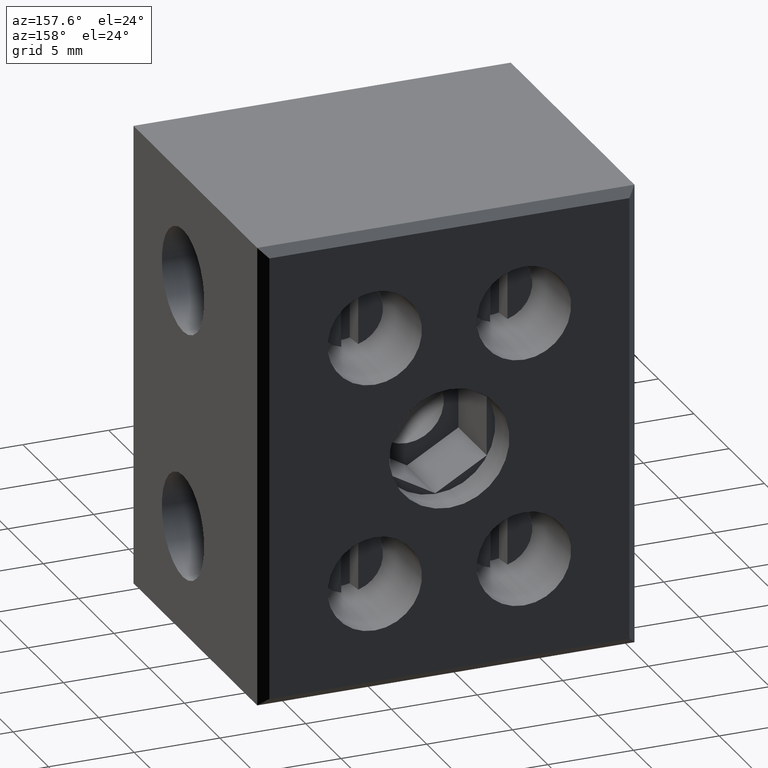
[diagram: clean part render]
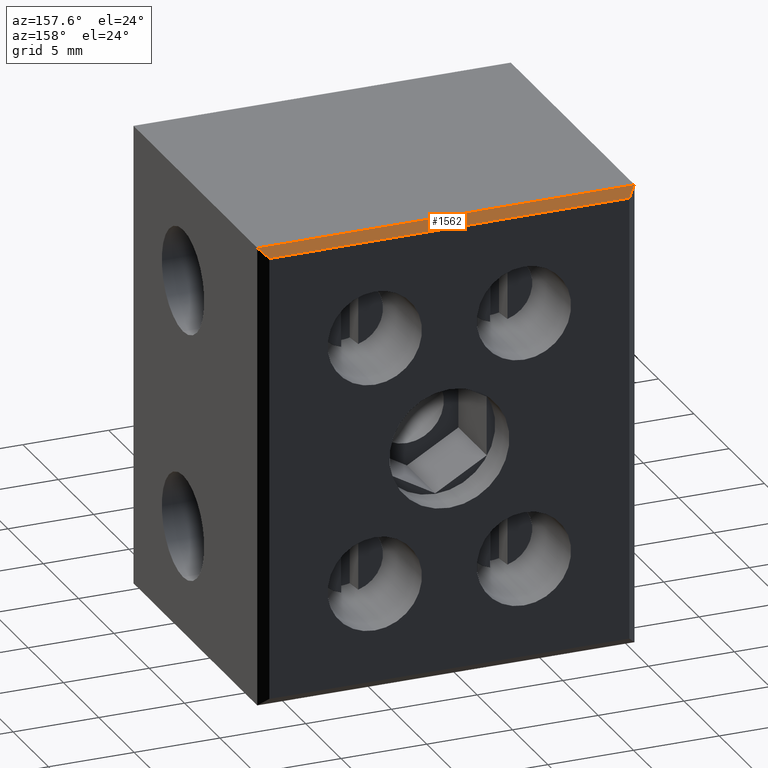
[diagram: same view with one face highlighted and labeled with its STEP entity id]
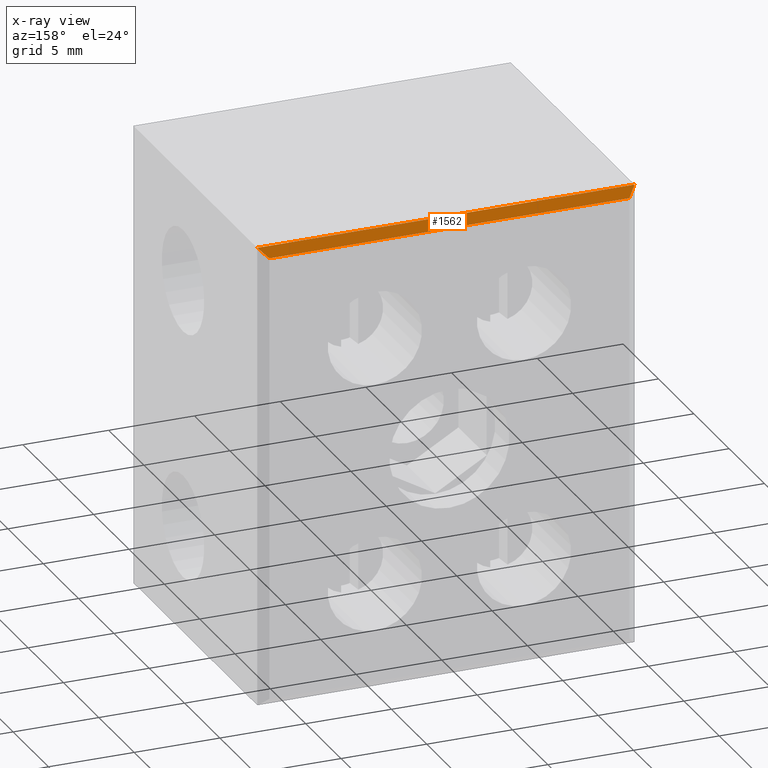
[diagram: x-ray of the same camera — body ghosted, the highlighted face saturated]
A machine part, auxiliary view. The second image highlights one B-rep face of the part: STEP entity #1562.
The next image is the same camera in x-ray: the body ghosted, the highlighted face saturated — about 0% of this face is hidden behind the body in this view.
In plain terms, the highlighted planar face has unit normal (0, -0.7071, -0.7071).
Its self-contained STEP definition (entity closure, byte-faithful):
#18 = DIRECTION ( 'NONE',  ( -0.5773502691896259500, -0.5773502691896257300, 0.5773502691896257300 ) ) ;
#21 = LINE ( 'NONE', #28, #4033 ) ;
#28 = CARTESIAN_POINT ( 'NONE',  ( 0.5000000000000038900, 18.50000000000000000, -0.4999999999999900100 ) ) ;
#69 = ORIENTED_EDGE ( 'NONE', *, *, #1290, .F. ) ;
#1214 = EDGE_CURVE ( 'NONE', #2736, #2786, #21, .T. ) ;
#1274 = EDGE_CURVE ( 'NONE', #2786, #2819, #4991, .T. ) ;
#1290 = EDGE_CURVE ( 'NONE', #2715, #2819, #5045, .T. ) ;
#1321 = EDGE_CURVE ( 'NONE', #2736, #2715, #5158, .T. ) ;
#1562 = ADVANCED_FACE ( 'NONE', ( #1886 ), #1920, .F. ) ;
#1884 = DIRECTION ( 'NONE',  ( 0.0000000000000000000, -0.7071067811865475700, -0.7071067811865475700 ) ) ;
#1886 = FACE_OUTER_BOUND ( 'NONE', #2909, .T. ) ;
#1890 = CARTESIAN_POINT ( 'NONE',  ( 0.0000000000000000000, 18.50000000000000000, -0.5000000000000038900 ) ) ;
#1915 = DIRECTION ( 'NONE',  ( 0.0000000000000000000, 0.7071067811865474600, -0.7071067811865474600 ) ) ;
#1920 = PLANE ( 'NONE',  #3677 ) ;
#2362 = CARTESIAN_POINT ( 'NONE',  ( 21.50000000000000000, 18.49999999999999600, -0.4999999999999989500 ) ) ;
#2398 = CARTESIAN_POINT ( 'NONE',  ( 0.5000000000000034400, 18.49999999999999600, -0.4999999999999987200 ) ) ;
#2436 = CARTESIAN_POINT ( 'NONE',  ( 22.00000000000000700, 17.99999999999999600, 9.780407097629655600E-015 ) ) ;
#2472 = CARTESIAN_POINT ( 'NONE',  ( -5.963111948670274400E-016, 17.99999999999999600, 5.827586677109586300E-015 ) ) ;
#2715 = VERTEX_POINT ( 'NONE', #2362 ) ;
#2736 = VERTEX_POINT ( 'NONE', #2398 ) ;
#2786 = VERTEX_POINT ( 'NONE', #2472 ) ;
#2819 = VERTEX_POINT ( 'NONE', #2436 ) ;
#2909 = EDGE_LOOP ( 'NONE', ( #3457, #69, #3479, #3481 ) ) ;
#3457 = ORIENTED_EDGE ( 'NONE', *, *, #1274, .T. ) ;
#3479 = ORIENTED_EDGE ( 'NONE', *, *, #1321, .F. ) ;
#3481 = ORIENTED_EDGE ( 'NONE', *, *, #1214, .T. ) ;
#3677 = AXIS2_PLACEMENT_3D ( 'NONE', #1890, #1884, #1915 ) ;
#4033 = VECTOR ( 'NONE', #18, 1000.000000000000000 ) ;
#4050 = VECTOR ( 'NONE', #5015, 1000.000000000000000 ) ;
#4080 = VECTOR ( 'NONE', #5073, 1000.000000000000000 ) ;
#4114 = VECTOR ( 'NONE', #5125, 1000.000000000000000 ) ;
#4991 = LINE ( 'NONE', #5020, #4050 ) ;
#5015 = DIRECTION ( 'NONE',  ( 1.000000000000000000, -0.0000000000000000000, 0.0000000000000000000 ) ) ;
#5020 = CARTESIAN_POINT ( 'NONE',  ( 0.0000000000000000000, 17.99999999999999600, 0.0000000000000000000 ) ) ;
#5044 = CARTESIAN_POINT ( 'NONE',  ( 21.50000000000000400, 18.50000000000000000, -0.5000000000000038900 ) ) ;
#5045 = LINE ( 'NONE', #5044, #4080 ) ;
#5073 = DIRECTION ( 'NONE',  ( 0.5773502691896230700, -0.5773502691896270600, 0.5773502691896271700 ) ) ;
#5125 = DIRECTION ( 'NONE',  ( 1.000000000000000000, 0.0000000000000000000, 0.0000000000000000000 ) ) ;
#5158 = LINE ( 'NONE', #5159, #4114 ) ;
#5159 = CARTESIAN_POINT ( 'NONE',  ( 0.0000000000000000000, 18.50000000000000000, -0.5000000000000038900 ) ) ;